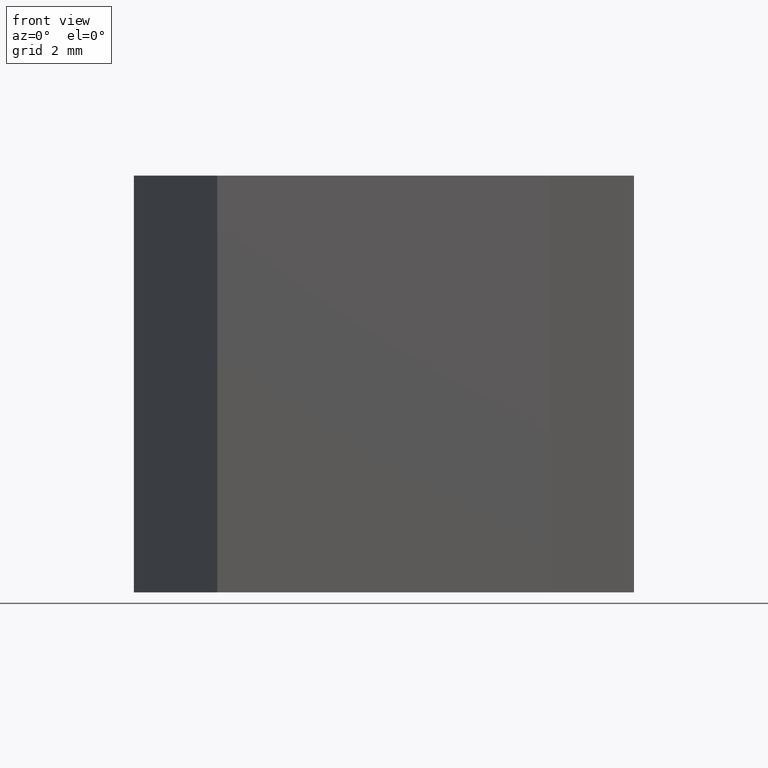
[diagram: clean part render]
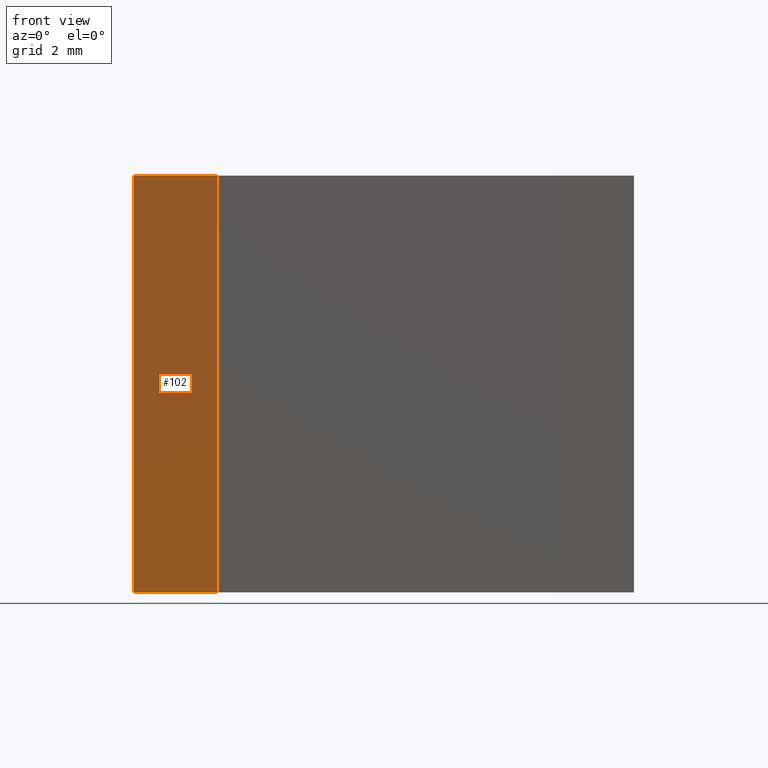
[diagram: same view with one face highlighted and labeled with its STEP entity id]
A machine part, front view. The second image highlights one B-rep face of the part: STEP entity #102.
In plain terms, the highlighted planar face has unit normal (-0.9701, -0.2425, 0).
Its self-contained STEP definition (entity closure, byte-faithful):
#16=FACE_OUTER_BOUND('',#22,.T.);
#22=EDGE_LOOP('',(#75,#76,#77,#78));
#29=LINE('',#170,#41);
#31=LINE('',#175,#43);
#32=LINE('',#176,#44);
#33=LINE('',#177,#45);
#41=VECTOR('',#142,10.);
#43=VECTOR('',#146,10.);
#44=VECTOR('',#147,10.);
#45=VECTOR('',#148,10.);
#53=VERTEX_POINT('',#167);
#54=VERTEX_POINT('',#169);
#55=VERTEX_POINT('',#173);
#56=VERTEX_POINT('',#174);
#61=EDGE_CURVE('',#54,#53,#29,.T.);
#63=EDGE_CURVE('',#55,#56,#31,.T.);
#64=EDGE_CURVE('',#56,#54,#32,.T.);
#65=EDGE_CURVE('',#55,#53,#33,.T.);
#75=ORIENTED_EDGE('',*,*,#63,.T.);
#76=ORIENTED_EDGE('',*,*,#64,.T.);
#77=ORIENTED_EDGE('',*,*,#61,.T.);
#78=ORIENTED_EDGE('',*,*,#65,.F.);
#96=PLANE('',#131);
#102=ADVANCED_FACE('',(#16),#96,.T.);
#131=AXIS2_PLACEMENT_3D('',#172,#144,#145);
#142=DIRECTION('',(0.242535625036333,-0.970142500145332,0.));
#144=DIRECTION('center_axis',(-0.970142500145332,-0.242535625036333,0.));
#145=DIRECTION('ref_axis',(0.,0.,1.));
#146=DIRECTION('',(-0.242535625036333,0.970142500145332,0.));
#147=DIRECTION('',(0.,0.,-1.));
#148=DIRECTION('',(0.,0.,-1.));
#167=CARTESIAN_POINT('',(-4.,-4.,-5.));
#169=CARTESIAN_POINT('',(-6.,4.,-5.));
#170=CARTESIAN_POINT('',(-4.,-4.,-5.));
#172=CARTESIAN_POINT('Origin',(-4.,-4.,0.));
#173=CARTESIAN_POINT('',(-4.,-4.,5.));
#174=CARTESIAN_POINT('',(-6.,4.,5.));
#175=CARTESIAN_POINT('',(-4.,-4.,5.));
#176=CARTESIAN_POINT('',(-6.,4.,0.));
#177=CARTESIAN_POINT('',(-4.,-4.,0.));